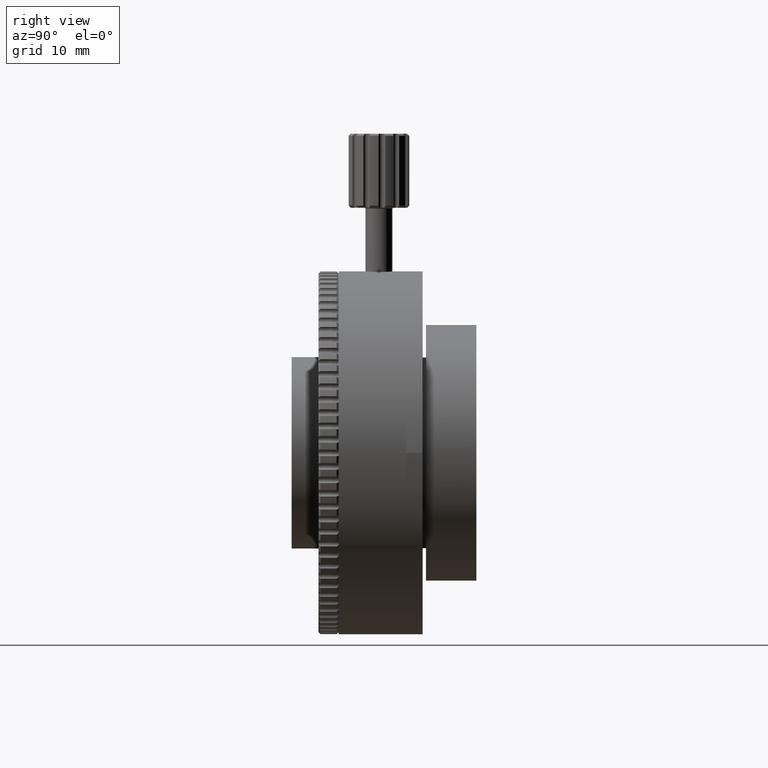
[diagram: clean part render]
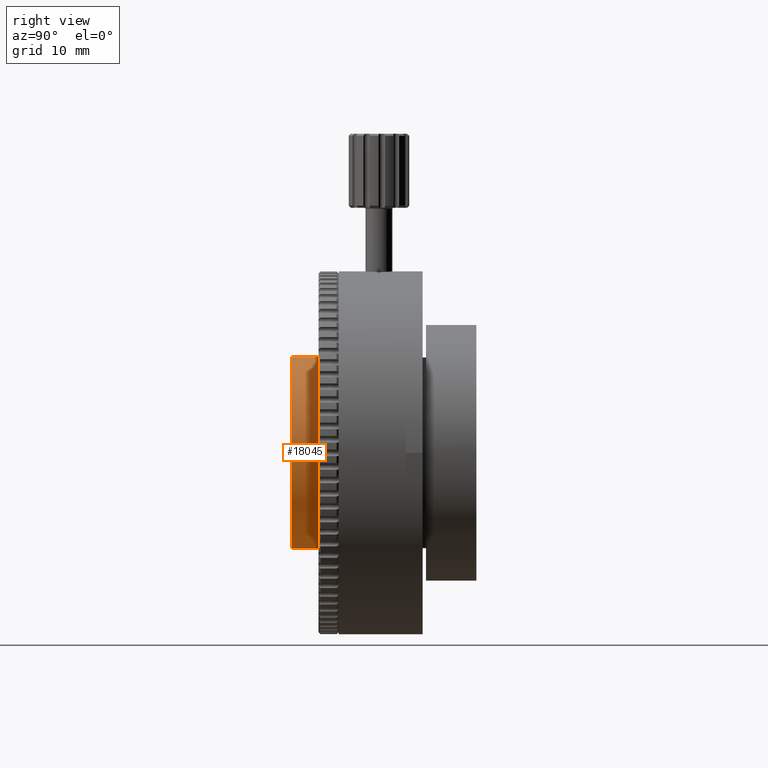
[diagram: same view with one face highlighted and labeled with its STEP entity id]
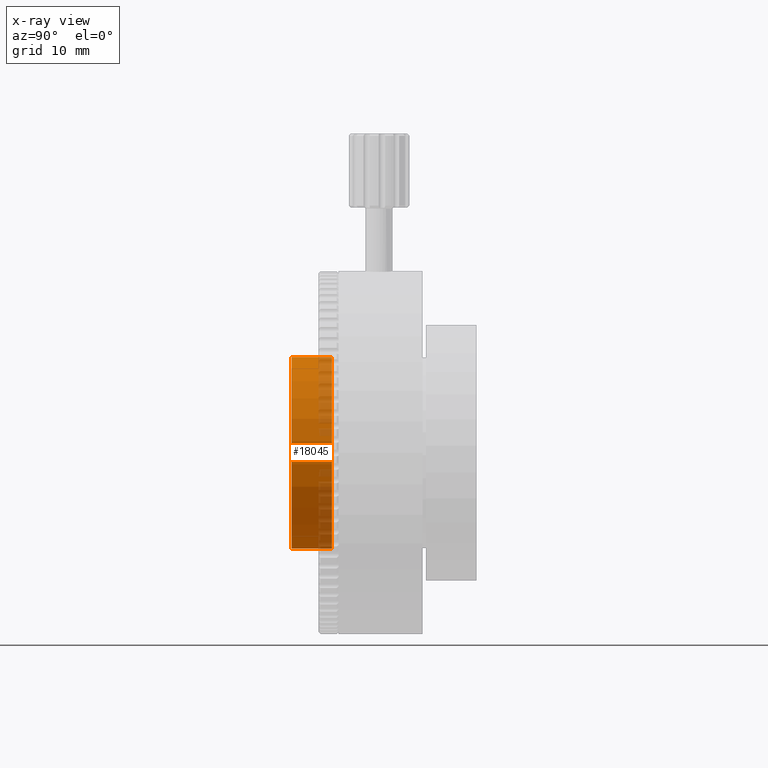
[diagram: x-ray of the same camera — body ghosted, the highlighted face saturated]
A machine part, right view. The second image highlights one B-rep face of the part: STEP entity #18045.
The next image is the same camera in x-ray: the body ghosted, the highlighted face saturated — about 28% of this face is hidden behind the body in this view.
In plain terms, the highlighted cylindrical surface (partial cylindrical patch) has radius 14.25 mm, axis along (-0, 1, -0).
Its self-contained STEP definition (entity closure, byte-faithful):
#752 = CYLINDRICAL_SURFACE ( 'NONE', #16011, 14.24999999999998579 ) ;
#1747 = DIRECTION ( 'NONE',  ( -0.000000000000000000, 1.000000000000000000, -0.000000000000000000 ) ) ;
#2318 = CARTESIAN_POINT ( 'NONE',  ( 9.352963249104790933, 3.070142668077136872, 90.70373576090615586 ) ) ;
#3515 = ORIENTED_EDGE ( 'NONE', *, *, #17738, .F. ) ;
#3824 = CARTESIAN_POINT ( 'NONE',  ( 9.352963249104792709, 3.070142668077136872, 62.20373576090618428 ) ) ;
#3891 = CARTESIAN_POINT ( 'NONE',  ( 9.352963249104790933, -2.929857331922868457, 90.70373576090615586 ) ) ;
#4244 = FACE_OUTER_BOUND ( 'NONE', #15132, .T. ) ;
#4532 = CARTESIAN_POINT ( 'NONE',  ( 9.352963249104792709, 108.6097110134007835, 62.20373576090618428 ) ) ;
#5168 = AXIS2_PLACEMENT_3D ( 'NONE', #9081, #1747, #14244 ) ;
#6114 = DIRECTION ( 'NONE',  ( -0.000000000000000000, 1.000000000000000000, -0.000000000000000000 ) ) ;
#6187 = ORIENTED_EDGE ( 'NONE', *, *, #20244, .T. ) ;
#6406 = DIRECTION ( 'NONE',  ( -0.000000000000000000, 1.000000000000000000, -0.000000000000000000 ) ) ;
#6657 = CIRCLE ( 'NONE', #7392, 14.24999999999998579 ) ;
#7317 = VECTOR ( 'NONE', #6406, 1000.000000000000000 ) ;
#7392 = AXIS2_PLACEMENT_3D ( 'NONE', #11554, #10446, #10012 ) ;
#7872 = CARTESIAN_POINT ( 'NONE',  ( 9.352963249104790933, 108.6097110134007835, 76.45373576090617007 ) ) ;
#8495 = LINE ( 'NONE', #4532, #7317 ) ;
#8688 = VERTEX_POINT ( 'NONE', #3824 ) ;
#9081 = CARTESIAN_POINT ( 'NONE',  ( 9.352963249104790933, -2.929857331922868457, 76.45373576090617007 ) ) ;
#10012 = DIRECTION ( 'NONE',  ( 0.000000000000000000, 0.000000000000000000, 1.000000000000000000 ) ) ;
#10367 = ORIENTED_EDGE ( 'NONE', *, *, #22245, .T. ) ;
#10446 = DIRECTION ( 'NONE',  ( -0.000000000000000000, 1.000000000000000000, -0.000000000000000000 ) ) ;
#11554 = CARTESIAN_POINT ( 'NONE',  ( 9.352963249104790933, 3.070142668077136872, 76.45373576090617007 ) ) ;
#12672 = VECTOR ( 'NONE', #13820, 1000.000000000000000 ) ;
#13820 = DIRECTION ( 'NONE',  ( -0.000000000000000000, 1.000000000000000000, -0.000000000000000000 ) ) ;
#14082 = VERTEX_POINT ( 'NONE', #2318 ) ;
#14150 = ORIENTED_EDGE ( 'NONE', *, *, #18198, .F. ) ;
#14244 = DIRECTION ( 'NONE',  ( 0.000000000000000000, 0.000000000000000000, 1.000000000000000000 ) ) ;
#15132 = EDGE_LOOP ( 'NONE', ( #10367, #6187, #3515, #14150 ) ) ;
#15267 = CIRCLE ( 'NONE', #5168, 14.24999999999998579 ) ;
#16011 = AXIS2_PLACEMENT_3D ( 'NONE', #7872, #6114, #18625 ) ;
#16635 = VERTEX_POINT ( 'NONE', #21318 ) ;
#17738 = EDGE_CURVE ( 'NONE', #14082, #8688, #6657, .T. ) ;
#17911 = VERTEX_POINT ( 'NONE', #3891 ) ;
#18045 = ADVANCED_FACE ( 'NONE', ( #4244 ), #752, .T. ) ;
#18198 = EDGE_CURVE ( 'NONE', #17911, #14082, #21048, .T. ) ;
#18625 = DIRECTION ( 'NONE',  ( 0.000000000000000000, 0.000000000000000000, 1.000000000000000000 ) ) ;
#19306 = CARTESIAN_POINT ( 'NONE',  ( 9.352963249104790933, 108.6097110134007835, 90.70373576090615586 ) ) ;
#20244 = EDGE_CURVE ( 'NONE', #16635, #8688, #8495, .T. ) ;
#21048 = LINE ( 'NONE', #19306, #12672 ) ;
#21318 = CARTESIAN_POINT ( 'NONE',  ( 9.352963249104792709, -2.929857331922868457, 62.20373576090618428 ) ) ;
#22245 = EDGE_CURVE ( 'NONE', #17911, #16635, #15267, .T. ) ;